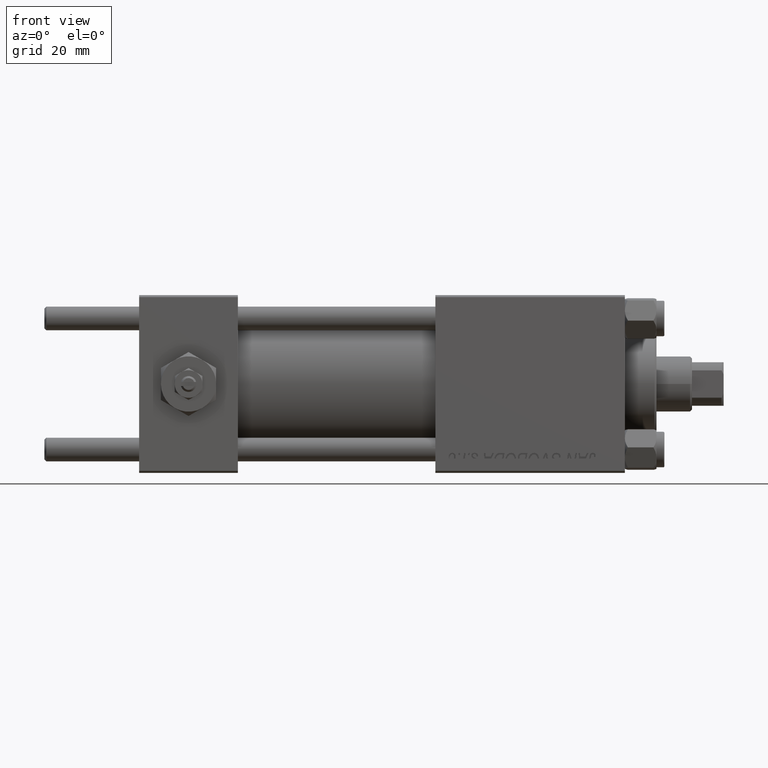
[diagram: clean part render]
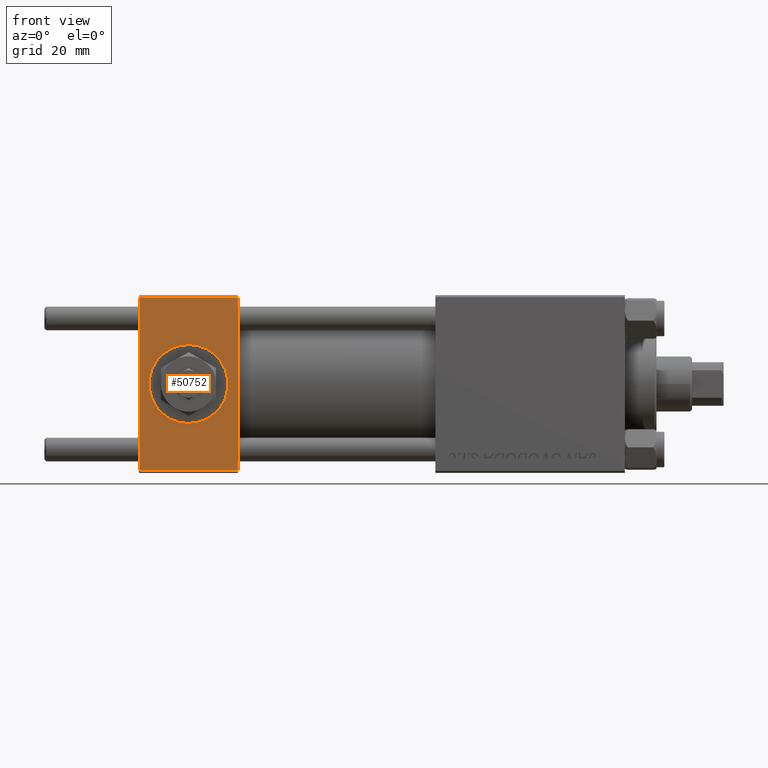
[diagram: same view with one face highlighted and labeled with its STEP entity id]
A machine part, front view. The second image highlights one B-rep face of the part: STEP entity #50752.
In plain terms, the highlighted planar face has unit normal (0, 1, 0).
Its self-contained STEP definition (entity closure, byte-faithful):
#94 = VERTEX_POINT ( 'NONE', #2639 ) ;
#532 = LINE ( 'NONE', #7853, #10781 ) ;
#2468 = PLANE ( 'NONE',  #7655 ) ;
#2639 = CARTESIAN_POINT ( 'NONE',  ( 0.000000000000000000, -22.50000000000000000, 22.00000000000000000 ) ) ;
#4178 = ORIENTED_EDGE ( 'NONE', *, *, #29855, .T. ) ;
#4483 = DIRECTION ( 'NONE',  ( 0.000000000000000000, -1.000000000000000000, -8.673617379884036705E-17 ) ) ;
#5377 = CARTESIAN_POINT ( 'NONE',  ( 12.50000000000000000, -22.50000000000000000, -9.999999999999996447 ) ) ;
#6001 = DIRECTION ( 'NONE',  ( 0.000000000000000000, 0.000000000000000000, -1.000000000000000000 ) ) ;
#7059 = VERTEX_POINT ( 'NONE', #17897 ) ;
#7537 = EDGE_CURVE ( 'NONE', #47305, #30406, #532, .T. ) ;
#7655 = AXIS2_PLACEMENT_3D ( 'NONE', #9289, #45105, #34093 ) ;
#7853 = CARTESIAN_POINT ( 'NONE',  ( 25.00000000000000000, -22.50000000000000000, 22.50000000000000000 ) ) ;
#8795 = CIRCLE ( 'NONE', #32160, 9.999999999999996447 ) ;
#9289 = CARTESIAN_POINT ( 'NONE',  ( 25.00000000000000000, -22.50000000000000000, 22.50000000000000000 ) ) ;
#10781 = VECTOR ( 'NONE', #6001, 1000.000000000000000 ) ;
#12911 = EDGE_CURVE ( 'NONE', #47305, #94, #24970, .T. ) ;
#13716 = EDGE_CURVE ( 'NONE', #39688, #25701, #8795, .T. ) ;
#14256 = FACE_BOUND ( 'NONE', #19148, .T. ) ;
#15070 = LINE ( 'NONE', #38336, #17598 ) ;
#15159 = DIRECTION ( 'NONE',  ( 0.000000000000000000, 0.000000000000000000, -1.000000000000000000 ) ) ;
#17482 = CARTESIAN_POINT ( 'NONE',  ( 25.00000000000000000, -22.50000000000000000, -21.99999999999997158 ) ) ;
#17598 = VECTOR ( 'NONE', #27072, 1000.000000000000000 ) ;
#17897 = CARTESIAN_POINT ( 'NONE',  ( 0.000000000000000000, -22.50000000000000000, -21.99999999999997158 ) ) ;
#19025 = CIRCLE ( 'NONE', #31525, 9.999999999999996447 ) ;
#19148 = EDGE_LOOP ( 'NONE', ( #46942, #27835 ) ) ;
#21045 = DIRECTION ( 'NONE',  ( -1.000000000000000000, 0.000000000000000000, 0.000000000000000000 ) ) ;
#21822 = FACE_OUTER_BOUND ( 'NONE', #47782, .T. ) ;
#24970 = LINE ( 'NONE', #36228, #41380 ) ;
#25635 = ORIENTED_EDGE ( 'NONE', *, *, #12911, .T. ) ;
#25701 = VERTEX_POINT ( 'NONE', #5377 ) ;
#26089 = CARTESIAN_POINT ( 'NONE',  ( 25.00000000000000000, -22.50000000000000000, 22.00000000000000000 ) ) ;
#26734 = LINE ( 'NONE', #37743, #29983 ) ;
#27072 = DIRECTION ( 'NONE',  ( 0.000000000000000000, 0.000000000000000000, -1.000000000000000000 ) ) ;
#27835 = ORIENTED_EDGE ( 'NONE', *, *, #13716, .F. ) ;
#29323 = ORIENTED_EDGE ( 'NONE', *, *, #32923, .T. ) ;
#29855 = EDGE_CURVE ( 'NONE', #7059, #30406, #26734, .T. ) ;
#29983 = VECTOR ( 'NONE', #49493, 1000.000000000000000 ) ;
#30406 = VERTEX_POINT ( 'NONE', #17482 ) ;
#31525 = AXIS2_PLACEMENT_3D ( 'NONE', #43969, #4483, #36367 ) ;
#32160 = AXIS2_PLACEMENT_3D ( 'NONE', #50418, #50669, #15159 ) ;
#32923 = EDGE_CURVE ( 'NONE', #94, #7059, #15070, .T. ) ;
#34093 = DIRECTION ( 'NONE',  ( 0.000000000000000000, -0.000000000000000000, 1.000000000000000000 ) ) ;
#36228 = CARTESIAN_POINT ( 'NONE',  ( 25.00000000000000000, -22.50000000000000000, 22.00000000000000000 ) ) ;
#36367 = DIRECTION ( 'NONE',  ( 0.000000000000000000, 0.000000000000000000, -1.000000000000000000 ) ) ;
#37743 = CARTESIAN_POINT ( 'NONE',  ( 25.00000000000000000, -22.50000000000000000, -21.99999999999998579 ) ) ;
#38336 = CARTESIAN_POINT ( 'NONE',  ( 0.000000000000000000, -22.50000000000000000, 22.50000000000000000 ) ) ;
#39688 = VERTEX_POINT ( 'NONE', #50260 ) ;
#41380 = VECTOR ( 'NONE', #21045, 1000.000000000000000 ) ;
#41452 = EDGE_CURVE ( 'NONE', #25701, #39688, #19025, .T. ) ;
#43969 = CARTESIAN_POINT ( 'NONE',  ( 12.50000000000000000, -22.50000000000000000, 0.000000000000000000 ) ) ;
#45105 = DIRECTION ( 'NONE',  ( -0.000000000000000000, 1.000000000000000000, 0.000000000000000000 ) ) ;
#46942 = ORIENTED_EDGE ( 'NONE', *, *, #41452, .F. ) ;
#47305 = VERTEX_POINT ( 'NONE', #26089 ) ;
#47782 = EDGE_LOOP ( 'NONE', ( #29323, #4178, #50642, #25635 ) ) ;
#49493 = DIRECTION ( 'NONE',  ( 1.000000000000000000, 0.000000000000000000, 0.000000000000000000 ) ) ;
#50260 = CARTESIAN_POINT ( 'NONE',  ( 12.50000000000000178, -22.50000000000000000, 9.999999999999996447 ) ) ;
#50418 = CARTESIAN_POINT ( 'NONE',  ( 12.50000000000000000, -22.50000000000000000, 0.000000000000000000 ) ) ;
#50642 = ORIENTED_EDGE ( 'NONE', *, *, #7537, .F. ) ;
#50669 = DIRECTION ( 'NONE',  ( 0.000000000000000000, -1.000000000000000000, -8.673617379884036705E-17 ) ) ;
#50752 = ADVANCED_FACE ( 'NONE', ( #14256, #21822 ), #2468, .F. ) ;